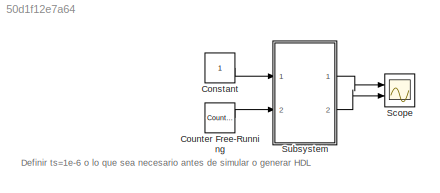
MODEL slx_50d1f12e7a64
KIND model
CONFIG AbsTol = auto
CONFIG EnableMultiTasking = off
CONFIG FixedStep = auto
CONFIG MaxStep = auto
CONFIG MinStep = auto
CONFIG RelTol = 1e-3
CONFIG SampleTimeConstraint = Unconstrained
CONFIG Solver = FixedStepDiscrete
CONFIG SolverName = FixedStepDiscrete
CONFIG StartTime = 0.0
CONFIG StopTime = 1000*ts
BLOCK [Constant] Constant
  OutDataTypeStr = fixdt(1,8,0)
  SampleTime = -1
BLOCK [Reference] Counter Free-Running  REF=simulink/Sources/Counter
Free-Running
  Ports = [0, 1]
  SourceBlock = simulink/Sources/Counter\nFree-Running
  SourceProductBaseCode = SL
  SourceProductName = Simulink
  SourceType = Counter Free-Running
BLOCK [Scope] Scope
  Floating = off
  NumInputPorts = 2
  Ports = [2]
  ScopeSpecificationString = Simulink.scopes.TimeScopeBlockCfg('CurrentConfiguration', extmgr.ConfigurationSet(extmgr.Configuration('Core','General UI',true),extmgr.Configuration('Core','Source UI',true),extmgr.Configuration('Sources','WiredSimulink',true),extmgr.Configuration('Visuals','Time Domain',true,'SerializedDisplays',{struct('MinYLimReal','-31.875','MaxYLimReal','286.875','YLabelReal','','MinYLimMag','0.00000','MaxYL...<+1368ch>
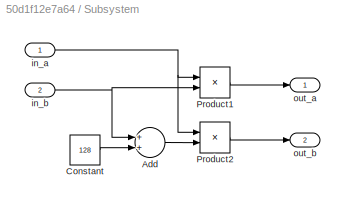
BLOCK [SubSystem] Subsystem
  Ports = [2, 2]
  RequestExecContextInheritance = off
BLOCK [Sum] Subsystem/Add
  AccumDataTypeStr = Inherit: Same as first input
  InputSameDT = off
  OutDataTypeStr = Inherit: Same as accumulator
  Ports = [2, 1]
  SaturateOnIntegerOverflow = off
BLOCK [Constant] Subsystem/Constant
  OutDataTypeStr = fixdt(0,8,0)
  SampleTime = -1
  Value = 128
BLOCK [Product] Subsystem/Product1
  InputSameDT = off
  OutDataTypeStr = Inherit: Inherit via internal rule
  Ports = [2, 1]
  RndMeth = Floor
  SaturateOnIntegerOverflow = off
BLOCK [Product] Subsystem/Product2
  InputSameDT = off
  OutDataTypeStr = Inherit: Inherit via internal rule
  Ports = [2, 1]
  RndMeth = Floor
  SaturateOnIntegerOverflow = off
BLOCK [Inport] Subsystem/in_a
  IconDisplay = Port number
BLOCK [Inport] Subsystem/in_b
  IconDisplay = Port number
  Port = 2
BLOCK [Outport] Subsystem/out_a
  IconDisplay = Port number
BLOCK [Outport] Subsystem/out_b
  IconDisplay = Port number
  Port = 2
ANNOTATION (root): Definir ts=1e-6 o lo que sea necesario antes de simular o generar HDL
LINE Constant:1 -> Subsystem:1
LINE Counter Free-Running:1 -> Subsystem:2
LINE Subsystem/Add:1 -> Subsystem/Product2:2
LINE Subsystem/Constant:1 -> Subsystem/Add:2
LINE Subsystem/Product1:1 -> Subsystem/out_a:1
LINE Subsystem/Product2:1 -> Subsystem/out_b:1
NET Subsystem/in_a:1 -> Subsystem/Product1:1, Subsystem/Product2:1
NET Subsystem/in_b:1 -> Subsystem/Add:1, Subsystem/Product1:2
LINE Subsystem:1 -> Scope:1
LINE Subsystem:2 -> Scope:2
note: NET lines group one-source signal fan-out (src -> all destinations, sorted); 1:1 wires keep LINE
